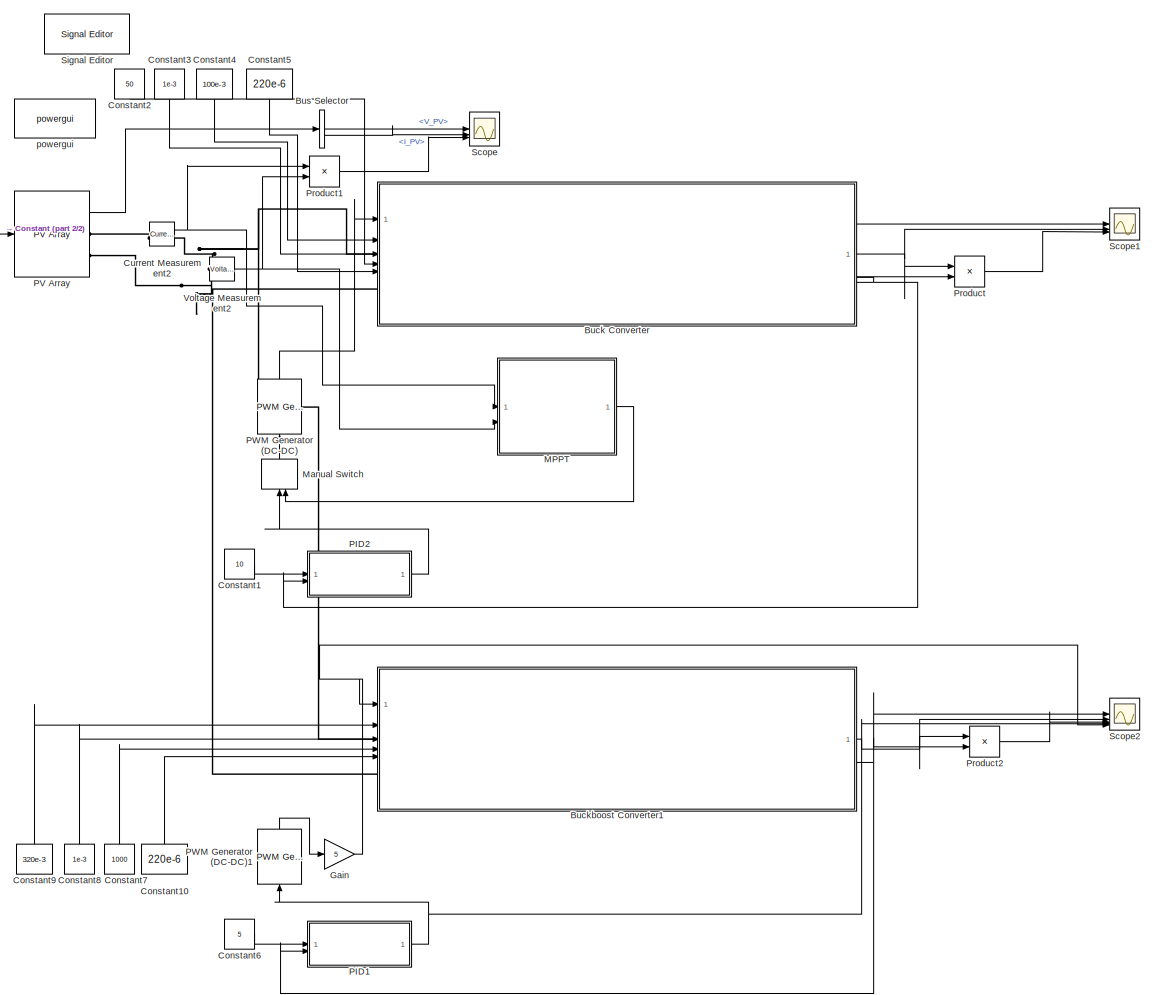
[diagram: root canvas - part 1/2, most of the canvas]
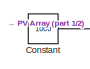
[diagram: root canvas - part 2/2, top left region]
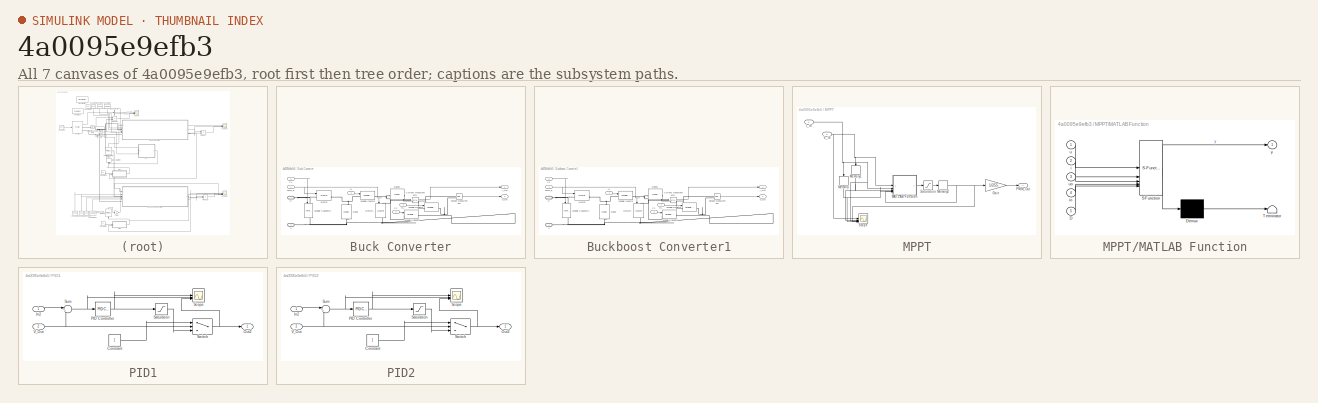
[diagram: thumbnail index - all 7 canvases of the model, root first then tree order]
MODEL slx_4a0095e9efb3
KIND model
CONFIG AbsTol = auto
CONFIG EnableMultiTasking = off
CONFIG FixedStep = 1e-5
CONFIG MaxStep = auto
CONFIG MinStep = auto
CONFIG RelTol = 1e-3
CONFIG SampleTimeConstraint = Unconstrained
CONFIG SolverName = FixedStepAuto
CONFIG StartTime = 0.0
CONFIG StopTime = 4
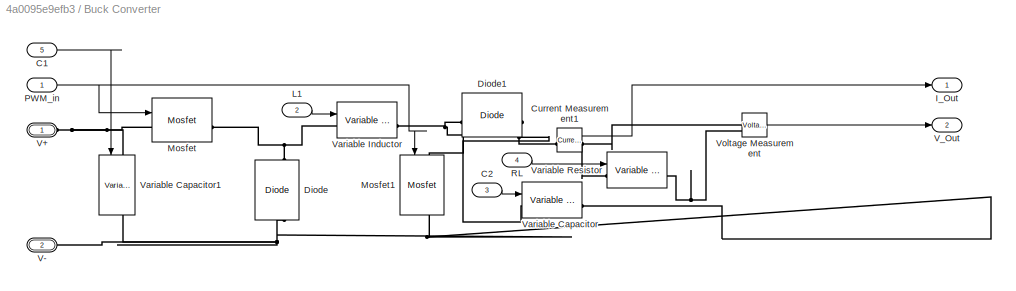
BLOCK [SubSystem] Buck Converter
BLOCK [Inport] Buck Converter/C1
  Port = 5
BLOCK [Inport] Buck Converter/C2
  Port = 3
BLOCK [Reference] Buck Converter/Current Measurement1  REF=spsCurrentMeasurementLib/Current Measurement
  LibrarySourceBlock = sps_lib/Sensors and Measurements/Current Measurement
  SourceBlock = spsCurrentMeasurementLib/Current Measurement
  SourceType = Current Measurement
  UserDataPersistent = on
BLOCK [Reference] Buck Converter/Diode  REF=spsDiodeLib/Diode
  LibrarySourceBlock = sps_lib/Power Electronics/Diode
  NameLocation = right
  SourceBlock = spsDiodeLib/Diode
  SourceType = Diode
BLOCK [Reference] Buck Converter/Diode1  REF=spsDiodeLib/Diode
  LibrarySourceBlock = sps_lib/Power Electronics/Diode
  SourceBlock = spsDiodeLib/Diode
  SourceType = Diode
BLOCK [Outport] Buck Converter/I_Out
BLOCK [Inport] Buck Converter/L1
  Port = 2
BLOCK [Reference] Buck Converter/Mosfet  REF=spsMosfetLib/Mosfet
  LibrarySourceBlock = sps_lib/Power Electronics/Mosfet
  SourceBlock = spsMosfetLib/Mosfet
  SourceType = Mosfet
BLOCK [Reference] Buck Converter/Mosfet1  REF=spsMosfetLib/Mosfet
  LibrarySourceBlock = sps_lib/Power Electronics/Mosfet
  NameLocation = left
  SourceBlock = spsMosfetLib/Mosfet
  SourceType = Mosfet
BLOCK [Inport] Buck Converter/PWM_in
BLOCK [Inport] Buck Converter/RL
  Port = 4
BLOCK [PMIOPort] Buck Converter/V+
  Side = Left
BLOCK [PMIOPort] Buck Converter/V-
  Port = 2
  Side = Left
BLOCK [Outport] Buck Converter/V_Out
  Port = 2
BLOCK [Reference] Buck Converter/Variable Capacitor  REF=spsVariableCapacitorLib/Variable Capacitor
  LibrarySourceBlock = sps_lib/Passives/Variable Capacitor
  SourceBlock = spsVariableCapacitorLib/Variable Capacitor
  SourceType = Variable Capacitor
BLOCK [Reference] Buck Converter/Variable Capacitor1  REF=spsVariableCapacitorLib/Variable Capacitor
  LibrarySourceBlock = sps_lib/Passives/Variable Capacitor
  NameLocation = left
  SourceBlock = spsVariableCapacitorLib/Variable Capacitor
  SourceType = Variable Capacitor
BLOCK [Reference] Buck Converter/Variable Inductor  REF=spsVariableInductorLib/Variable Inductor
  LibrarySourceBlock = sps_lib/Passives/Variable Inductor
  SourceBlock = spsVariableInductorLib/Variable Inductor
  SourceType = Variable Inductor
BLOCK [Reference] Buck Converter/Variable Resistor  REF=spsVariableResistorLib/Variable Resistor
  LibrarySourceBlock = sps_lib/Passives/Variable Resistor
  SourceBlock = spsVariableResistorLib/Variable Resistor
  SourceType = Variable Resistor
BLOCK [Reference] Buck Converter/Voltage Measurement  REF=spsVoltageMeasurementLib/Voltage Measurement
  LibrarySourceBlock = sps_lib/Sensors and Measurements/Voltage Measurement
  SourceBlock = spsVoltageMeasurementLib/Voltage Measurement
  SourceType = Voltage Measurement
  UserDataPersistent = on
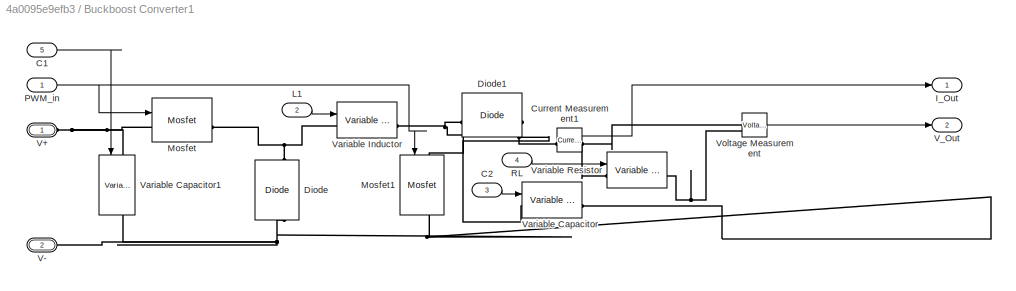
BLOCK [SubSystem] Buckboost Converter1
BLOCK [Inport] Buckboost Converter1/C1
  Port = 5
BLOCK [Inport] Buckboost Converter1/C2
  Port = 3
BLOCK [Reference] Buckboost Converter1/Current Measurement1  REF=spsCurrentMeasurementLib/Current Measurement
  LibrarySourceBlock = sps_lib/Sensors and Measurements/Current Measurement
  SourceBlock = spsCurrentMeasurementLib/Current Measurement
  SourceType = Current Measurement
  UserDataPersistent = on
BLOCK [Reference] Buckboost Converter1/Diode  REF=spsDiodeLib/Diode
  LibrarySourceBlock = sps_lib/Power Electronics/Diode
  NameLocation = right
  SourceBlock = spsDiodeLib/Diode
  SourceType = Diode
BLOCK [Reference] Buckboost Converter1/Diode1  REF=spsDiodeLib/Diode
  LibrarySourceBlock = sps_lib/Power Electronics/Diode
  SourceBlock = spsDiodeLib/Diode
  SourceType = Diode
BLOCK [Outport] Buckboost Converter1/I_Out
BLOCK [Inport] Buckboost Converter1/L1
  Port = 2
BLOCK [Reference] Buckboost Converter1/Mosfet  REF=spsMosfetLib/Mosfet
  LibrarySourceBlock = sps_lib/Power Electronics/Mosfet
  SourceBlock = spsMosfetLib/Mosfet
  SourceType = Mosfet
BLOCK [Reference] Buckboost Converter1/Mosfet1  REF=spsMosfetLib/Mosfet
  LibrarySourceBlock = sps_lib/Power Electronics/Mosfet
  NameLocation = left
  SourceBlock = spsMosfetLib/Mosfet
  SourceType = Mosfet
BLOCK [Inport] Buckboost Converter1/PWM_in
BLOCK [Inport] Buckboost Converter1/RL
  Port = 4
BLOCK [PMIOPort] Buckboost Converter1/V+
  Side = Left
BLOCK [PMIOPort] Buckboost Converter1/V-
  Port = 2
  Side = Left
BLOCK [Outport] Buckboost Converter1/V_Out
  Port = 2
BLOCK [Reference] Buckboost Converter1/Variable Capacitor  REF=spsVariableCapacitorLib/Variable Capacitor
  LibrarySourceBlock = sps_lib/Passives/Variable Capacitor
  SourceBlock = spsVariableCapacitorLib/Variable Capacitor
  SourceType = Variable Capacitor
BLOCK [Reference] Buckboost Converter1/Variable Capacitor1  REF=spsVariableCapacitorLib/Variable Capacitor
  Commented = on
  LibrarySourceBlock = sps_lib/Passives/Variable Capacitor
  NameLocation = left
  SourceBlock = spsVariableCapacitorLib/Variable Capacitor
  SourceType = Variable Capacitor
BLOCK [Reference] Buckboost Converter1/Variable Inductor  REF=spsVariableInductorLib/Variable Inductor
  LibrarySourceBlock = sps_lib/Passives/Variable Inductor
  SourceBlock = spsVariableInductorLib/Variable Inductor
  SourceType = Variable Inductor
BLOCK [Reference] Buckboost Converter1/Variable Resistor  REF=spsVariableResistorLib/Variable Resistor
  LibrarySourceBlock = sps_lib/Passives/Variable Resistor
  SourceBlock = spsVariableResistorLib/Variable Resistor
  SourceType = Variable Resistor
BLOCK [Reference] Buckboost Converter1/Voltage Measurement  REF=spsVoltageMeasurementLib/Voltage Measurement
  LibrarySourceBlock = sps_lib/Sensors and Measurements/Voltage Measurement
  SourceBlock = spsVoltageMeasurementLib/Voltage Measurement
  SourceType = Voltage Measurement
  UserDataPersistent = on
BLOCK [BusSelector] Bus Selector
  OutputSignals = V_PV,I_PV
BLOCK [Constant] Constant
  Value = 1000
BLOCK [Constant] Constant1
  Value = 10
BLOCK [Constant] Constant10
  NameLocation = right
  Value = 220e-6
BLOCK [Constant] Constant2
  NameLocation = left
  Value = 50
BLOCK [Constant] Constant3
  NameLocation = left
  Value = 1e-3
BLOCK [Constant] Constant4
  NameLocation = left
  Value = 100e-3
BLOCK [Constant] Constant5
  NameLocation = left
  Value = 220e-6
BLOCK [Constant] Constant6
  Value = 5
BLOCK [Constant] Constant7
  NameLocation = right
  Value = 1000
BLOCK [Constant] Constant8
  NameLocation = right
  Value = 1e-3
BLOCK [Constant] Constant9
  NameLocation = right
  Value = 320e-3
BLOCK [Reference] Current Measurement2  REF=spsCurrentMeasurementLib/Current Measurement
  LibrarySourceBlock = sps_lib/Sensors and Measurements/Current Measurement
  SourceBlock = spsCurrentMeasurementLib/Current Measurement
  SourceType = Current Measurement
  UserDataPersistent = on
BLOCK [Gain] Gain
  Gain = 5
BLOCK [SubSystem] MPPT
BLOCK [Gain] MPPT/Gain
  Gain = 1/255
BLOCK [Inport] MPPT/I_in
BLOCK [SubSystem] MPPT/MATLAB Function
  ErrorFcn = Stateflow.Translate.translate
  LibrarySourceBlock = simulink/User-Defined\nFunctions/MATLAB Function
  PermitHierarchicalResolution = ExplicitOnly
  SFBlockType = MATLAB Function
  TreatAsAtomicUnit = on
BLOCK [Demux] MPPT/MATLAB Function/ Demux 
  Outputs = 1
BLOCK [S-Function] MPPT/MATLAB Function/ SFunction 
  EnableBusSupport = on
  FunctionName = sf_sfun
  PortCounts = [5 2]
  SFcnIsStateOwnerBlock = off
  SFunctionDeploymentMode = off
  Tag = Stateflow S-Function 2
BLOCK [Terminator] MPPT/MATLAB Function/ Terminator 
BLOCK [Inport] MPPT/MATLAB Function/D
  Port = 5
BLOCK [Inport] MPPT/MATLAB Function/i
  Port = 2
BLOCK [Inport] MPPT/MATLAB Function/io
  Port = 4
BLOCK [Inport] MPPT/MATLAB Function/u
BLOCK [Inport] MPPT/MATLAB Function/uo
  Port = 3
BLOCK [Outport] MPPT/MATLAB Function/y
BLOCK [Memory] MPPT/Memory
  InheritSampleTime = on
  NameLocation = left
BLOCK [Memory] MPPT/Memory1
  InheritSampleTime = on
  NameLocation = left
BLOCK [Memory] MPPT/Memory2
  InheritSampleTime = on
BLOCK [Outport] MPPT/PWM_Out
BLOCK [Saturate] MPPT/Saturation
  LowerLimit = 0
  UpperLimit = 255
BLOCK [Scope] MPPT/Scope
  Floating = off
  NumInputPorts = 5
  ScopeSpecificationString = Simulink.scopes.TimeScopeBlockCfg('CurrentConfiguration', extmgr.ConfigurationSet(extmgr.Configuration('Core','General UI',true),extmgr.Configuration('Core','Source UI',true),extmgr.Configuration('Sources','WiredSimulink',true,'DataLoggingVariableName','ScopeData2'),extmgr.Configuration('Visuals','Time Domain',true,'SerializedDisplays',{struct('MinYLimReal','-31.875','MaxYLimReal','286.875','YLabe...<+1587ch>
BLOCK [Inport] MPPT/V_in
  Port = 2
BLOCK [ManualSwitch] Manual Switch
  NameLocation = right
BLOCK [SubSystem] PID1
BLOCK [Constant] PID1/Constant
BLOCK [Inport] PID1/In2
BLOCK [Outport] PID1/Out2
BLOCK [Reference] PID1/PID Controller  REF=slpidlib/PID Controller
  LibrarySourceBlock = simulink/Continuous/PID Controller
  SourceBlock = slpidlib/PID Controller
  SourceType = PID 1dof
BLOCK [Saturate] PID1/Saturation
  LowerLimit = 0.1
  UpperLimit = 0.8
BLOCK [Scope] PID1/Scope
  Floating = off
  NumInputPorts = 3
  ScopeSpecificationString = Simulink.scopes.TimeScopeBlockCfg('CurrentConfiguration', extmgr.ConfigurationSet(extmgr.Configuration('Core','General UI',true),extmgr.Configuration('Core','Source UI',true),extmgr.Configuration('Sources','WiredSimulink',true,'DataLoggingVariableName','ScopeData1'),extmgr.Configuration('Visuals','Time Domain',true,'SerializedDisplays',{struct('MinYLimReal','-0.09789','MaxYLimReal','0.46693','YLab...<+1434ch>
BLOCK [Sum] PID1/Sum
  Inputs = |+-
BLOCK [Switch] PID1/Switch
  Criteria = u2 > Threshold
  InputSameDT = off
  SaturateOnIntegerOverflow = off
  Threshold = 25
BLOCK [Inport] PID1/V_Out
  Port = 2
BLOCK [SubSystem] PID2
BLOCK [Constant] PID2/Constant
BLOCK [Inport] PID2/In2
BLOCK [Outport] PID2/Out2
BLOCK [Reference] PID2/PID Controller  REF=slpidlib/PID Controller
  LibrarySourceBlock = simulink/Continuous/PID Controller
  SourceBlock = slpidlib/PID Controller
  SourceType = PID 1dof
BLOCK [Saturate] PID2/Saturation
  LowerLimit = 0.1
  UpperLimit = 0.8
BLOCK [Scope] PID2/Scope
  Floating = off
  NumInputPorts = 3
  ScopeSpecificationString = Simulink.scopes.TimeScopeBlockCfg('CurrentConfiguration', extmgr.ConfigurationSet(extmgr.Configuration('Core','General UI',true),extmgr.Configuration('Core','Source UI',true),extmgr.Configuration('Sources','WiredSimulink',true,'DataLoggingVariableName','ScopeData1'),extmgr.Configuration('Visuals','Time Domain',true,'SerializedDisplays',{struct('MinYLimReal','-3.08839','MaxYLimReal','1.59714','YLab...<+1460ch>
BLOCK [Sum] PID2/Sum
  Inputs = |+-
BLOCK [Switch] PID2/Switch
  Criteria = u2 > Threshold
  InputSameDT = off
  SaturateOnIntegerOverflow = off
  Threshold = 25
BLOCK [Inport] PID2/V_Out
  Port = 2
BLOCK [Reference] PV Array  REF=spsPVArrayLib/PV Array
  LibrarySourceBlock = sps_lib/Sources/PV Array
  SourceBlock = spsPVArrayLib/PV Array
  SourceType = PV array
BLOCK [Reference] PWM Generator (DC-DC)  REF=spsPWMGeneratorDCDCLib/PWM Generator
(DC-DC)
  LibrarySourceBlock = sps_lib/Power Electronics/Power Electronics Control/PWM Generator\n(DC-DC)
  NameLocation = right
  SourceBlock = spsPWMGeneratorDCDCLib/PWM Generator\n(DC-DC)
  SourceType = PWM Generator (DC-DC)
BLOCK [Reference] PWM Generator (DC-DC)1  REF=spsPWMGeneratorDCDCLib/PWM Generator
(DC-DC)
  LibrarySourceBlock = sps_lib/Power Electronics/Power Electronics Control/PWM Generator\n(DC-DC)
  NameLocation = right
  SourceBlock = spsPWMGeneratorDCDCLib/PWM Generator\n(DC-DC)
  SourceType = PWM Generator (DC-DC)
BLOCK [Product] Product
BLOCK [Product] Product1
BLOCK [Product] Product2
BLOCK [Scope] Scope
  Floating = off
  NumInputPorts = 3
  ScopeSpecificationString = Simulink.scopes.TimeScopeBlockCfg('CurrentConfiguration', extmgr.ConfigurationSet(extmgr.Configuration('Core','General UI',true),extmgr.Configuration('Core','Source UI',true),extmgr.Configuration('Sources','WiredSimulink',true),extmgr.Configuration('Visuals','Time Domain',true,'SerializedDisplays',{struct('MinYLimReal','-2.71399','MaxYLimReal','24.59544','YLabelReal','','MinYLimMag','0.00000','Max...<+1845ch>
BLOCK [Scope] Scope1
  Floating = off
  NumInputPorts = 3
  ScopeSpecificationString = Simulink.scopes.TimeScopeBlockCfg('CurrentConfiguration', extmgr.ConfigurationSet(extmgr.Configuration('Core','General UI',true),extmgr.Configuration('Core','Source UI',true),extmgr.Configuration('Sources','WiredSimulink',true,'DataLoggingVariableName','ScopeData1'),extmgr.Configuration('Visuals','Time Domain',true,'SerializedDisplays',{struct('MinYLimReal','9.15159','MaxYLimReal','10.76717','YLab...<+1888ch>
BLOCK [Scope] Scope2
  Floating = off
  NumInputPorts = 5
  ScopeSpecificationString = Simulink.scopes.TimeScopeBlockCfg('CurrentConfiguration', extmgr.ConfigurationSet(extmgr.Configuration('Core','General UI',true),extmgr.Configuration('Core','Source UI',true),extmgr.Configuration('Sources','WiredSimulink',true,'DataLoggingVariableName','ScopeData1'),extmgr.Configuration('Visuals','Time Domain',true,'SerializedDisplays',{struct('MinYLimReal','-0.68214','MaxYLimReal','6.13927','YLab...<+1961ch>
BLOCK [Reference] Signal Editor  REF=SignalEditorBlockLib/Signal Editor
  Commented = on
  LibrarySourceBlock = simulink/Sources/Signal Editor
  SourceBlock = SignalEditorBlockLib/Signal Editor
  SourceType = SignalEditor
  UserDataPersistent = on
BLOCK [Reference] Voltage Measurement2  REF=spsVoltageMeasurementLib/Voltage Measurement
  LibrarySourceBlock = sps_lib/Sensors and Measurements/Voltage Measurement
  SourceBlock = spsVoltageMeasurementLib/Voltage Measurement
  SourceType = Voltage Measurement
  UserDataPersistent = on
BLOCK [Reference] powergui  REF=spspowerguiLib/powergui
  Priority = 1
  SourceBlock = spspowerguiLib/powergui
  SourceType = PSB option menu block
LINE Buck Converter/C1:1 -> Buck Converter/Variable Capacitor1:1
LINE Buck Converter/C2:1 -> Buck Converter/Variable Capacitor:1
LINE Buck Converter/Current Measurement1:1 -> Buck Converter/I_Out:1
LINE Buck Converter/L1:1 -> Buck Converter/Variable Inductor:1
NET Buck Converter/PWM_in:1 -> Buck Converter/Mosfet1:1, Buck Converter/Mosfet:1
LINE Buck Converter/RL:1 -> Buck Converter/Variable Resistor:1
LINE Buck Converter/Voltage Measurement:1 -> Buck Converter/V_Out:1
NET Buck Converter:1 -> Product:1, Scope1:2
NET Buck Converter:2 -> PID2:2, Product:2, Scope1:1
LINE Buckboost Converter1/C1:1 -> Buckboost Converter1/Variable Capacitor1:1
LINE Buckboost Converter1/C2:1 -> Buckboost Converter1/Variable Capacitor:1
LINE Buckboost Converter1/Current Measurement1:1 -> Buckboost Converter1/I_Out:1
LINE Buckboost Converter1/L1:1 -> Buckboost Converter1/Variable Inductor:1
NET Buckboost Converter1/PWM_in:1 -> Buckboost Converter1/Mosfet1:1, Buckboost Converter1/Mosfet:1
LINE Buckboost Converter1/RL:1 -> Buckboost Converter1/Variable Resistor:1
LINE Buckboost Converter1/Voltage Measurement:1 -> Buckboost Converter1/V_Out:1
NET Buckboost Converter1:1 -> Product2:1, Scope2:2
NET Buckboost Converter1:2 -> PID1:2, Product2:2, Scope2:1
LINE Bus Selector:1 -> Scope:1
LINE Bus Selector:2 -> Scope:2
LINE Constant10:1 -> Buckboost Converter1:5
LINE Constant1:1 -> PID2:1
LINE Constant2:1 -> Buck Converter:4
LINE Constant3:1 -> Buck Converter:3
LINE Constant4:1 -> Buck Converter:2
LINE Constant5:1 -> Buck Converter:5
LINE Constant6:1 -> PID1:1
LINE Constant7:1 -> Buckboost Converter1:4
LINE Constant8:1 -> Buckboost Converter1:3
LINE Constant9:1 -> Buckboost Converter1:2
LINE Constant:1 -> PV Array:1
NET Current Measurement2:1 -> MPPT:1, Product1:1
NET Gain:1 -> Buckboost Converter1:1, Scope2:5
LINE MPPT/Gain:1 -> MPPT/PWM_Out:1
NET MPPT/I_in:1 -> MPPT/MATLAB Function:2, MPPT/Memory:1, MPPT/Scope:3
LINE MPPT/MATLAB Function:1 -> MPPT/Saturation:1
NET MPPT/Memory1:1 -> MPPT/MATLAB Function:3, MPPT/Scope:2
NET MPPT/Memory2:1 -> MPPT/Gain:1, MPPT/MATLAB Function:5, MPPT/Scope:5
NET MPPT/Memory:1 -> MPPT/MATLAB Function:4, MPPT/Scope:4
LINE MPPT/Saturation:1 -> MPPT/Memory2:1
NET MPPT/V_in:1 -> MPPT/MATLAB Function:1, MPPT/Memory1:1, MPPT/Scope:1
LINE MPPT:1 -> Manual Switch:2
LINE Manual Switch:1 -> PWM Generator (DC-DC):1
LINE PID1/Constant:1 -> PID1/Switch:1
LINE PID1/In2:1 -> PID1/Sum:1
NET PID1/PID Controller:1 -> PID1/Saturation:1, PID1/Scope:1
LINE PID1/Saturation:1 -> PID1/Switch:3
NET PID1/Sum:1 -> PID1/PID Controller:1, PID1/Scope:2
NET PID1/Switch:1 -> PID1/Out2:1, PID1/Scope:3
NET PID1/V_Out:1 -> PID1/Sum:2, PID1/Switch:2
NET PID1:1 -> PWM Generator (DC-DC)1:1, Scope2:4
LINE PID2/Constant:1 -> PID2/Switch:1
LINE PID2/In2:1 -> PID2/Sum:1
NET PID2/PID Controller:1 -> PID2/Saturation:1, PID2/Scope:1
LINE PID2/Saturation:1 -> PID2/Switch:3
NET PID2/Sum:1 -> PID2/PID Controller:1, PID2/Scope:2
NET PID2/Switch:1 -> PID2/Out2:1, PID2/Scope:3
NET PID2/V_Out:1 -> PID2/Sum:2, PID2/Switch:2
LINE PID2:1 -> Manual Switch:1
LINE PV Array:1 -> Bus Selector:1
LINE PWM Generator (DC-DC)1:1 -> Gain:1
LINE PWM Generator (DC-DC):1 -> Buck Converter:1
LINE Product1:1 -> Scope:3
LINE Product2:1 -> Scope2:3
LINE Product:1 -> Scope1:3
NET Voltage Measurement2:1 -> MPPT:2, Product1:2
PNET net1: Buck Converter/Current Measurement1:LConn1 -- Buck Converter/Diode1:RConn1 -- Buck Converter/Variable Capacitor:LConn1
PNET net2: Buck Converter/Current Measurement1:RConn1 -- Buck Converter/Variable Resistor:LConn1 -- Buck Converter/Voltage Measurement:LConn1
PNET net3: Buck Converter/Diode1:LConn1 -- Buck Converter/Mosfet1:LConn1 -- Buck Converter/Variable Inductor:RConn1
PNET net4: Buck Converter/Diode:LConn1 -- Buck Converter/Mosfet1:RConn1 -- Buck Converter/V-:RConn1 -- Buck Converter/Variable Capacitor1:RConn1 -- Buck Converter/Variable Capacitor:RConn1 -- Buck Converter/Variable Resistor:RConn1 -- Buck Converter/Voltage Measurement:LConn2
PNET net5: Buck Converter/Diode:RConn1 -- Buck Converter/Mosfet:RConn1 -- Buck Converter/Variable Inductor:LConn1
PNET net6: Buck Converter/Mosfet:LConn1 -- Buck Converter/V+:RConn1 -- Buck Converter/Variable Capacitor1:LConn1
PNET net7: Buck Converter:LConn1 -- Buckboost Converter1:LConn1 -- Current Measurement2:RConn1 -- Voltage Measurement2:LConn1
PNET net8: Buck Converter:LConn2 -- Buckboost Converter1:LConn2 -- PV Array:RConn2 -- Voltage Measurement2:LConn2
PNET net9: Buckboost Converter1/Current Measurement1:LConn1 -- Buckboost Converter1/Diode1:RConn1 -- Buckboost Converter1/Variable Capacitor:LConn1
PNET net10: Buckboost Converter1/Current Measurement1:RConn1 -- Buckboost Converter1/Variable Resistor:LConn1 -- Buckboost Converter1/Voltage Measurement:LConn1
PNET net11: Buckboost Converter1/Diode1:LConn1 -- Buckboost Converter1/Mosfet1:LConn1 -- Buckboost Converter1/Variable Inductor:RConn1
PNET net12: Buckboost Converter1/Diode:LConn1 -- Buckboost Converter1/Mosfet1:RConn1 -- Buckboost Converter1/V-:RConn1 -- Buckboost Converter1/Variable Capacitor1:RConn1 -- Buckboost Converter1/Variable Capacitor:RConn1 -- Buckboost Converter1/Variable Resistor:RConn1 -- Buckboost Converter1/Voltage Measurement:LConn2
PNET net13: Buckboost Converter1/Diode:RConn1 -- Buckboost Converter1/Mosfet:RConn1 -- Buckboost Converter1/Variable Inductor:LConn1
PNET net14: Buckboost Converter1/Mosfet:LConn1 -- Buckboost Converter1/V+:RConn1 -- Buckboost Converter1/Variable Capacitor1:LConn1
PLINE Current Measurement2:LConn1 -- PV Array:RConn1
note: NET lines group one-source signal fan-out (src -> all destinations, sorted); 1:1 wires keep LINE; PNET lines group multi-terminal physical nets as a canonical sorted terminal list (undirected conserving connections); 2-terminal nets keep the pairwise PLINE form
CHART MPPT/MATLAB Function states=1 transitions=1
  STATE_LABEL 'eML_blk_kernel()'
  STATE_LABEL 'SCRIPT:\n% function pwm_out = fcn(volt, curr, volt_prev, curr_prev, pwm_in)\n% \n% % Code to update the PWM voltage\n% delta_v = volt - volt_prev;\n% delta_i = curr - curr_prev;\n% \n% delta_const = curr + (delta_i/delta_v)*volt;\n% \n% if delta_v == 0\n%     if delta_i == 0\n%         pwm_out = pwm_in;\n%     elseif delta_i > 0\n%         pwm_out = pwm_in + 1;\n%     else\n%         pwm_out = pwm_in - 1;\n%     ...<+493ch>'
CHART  states=0 transitions=0
